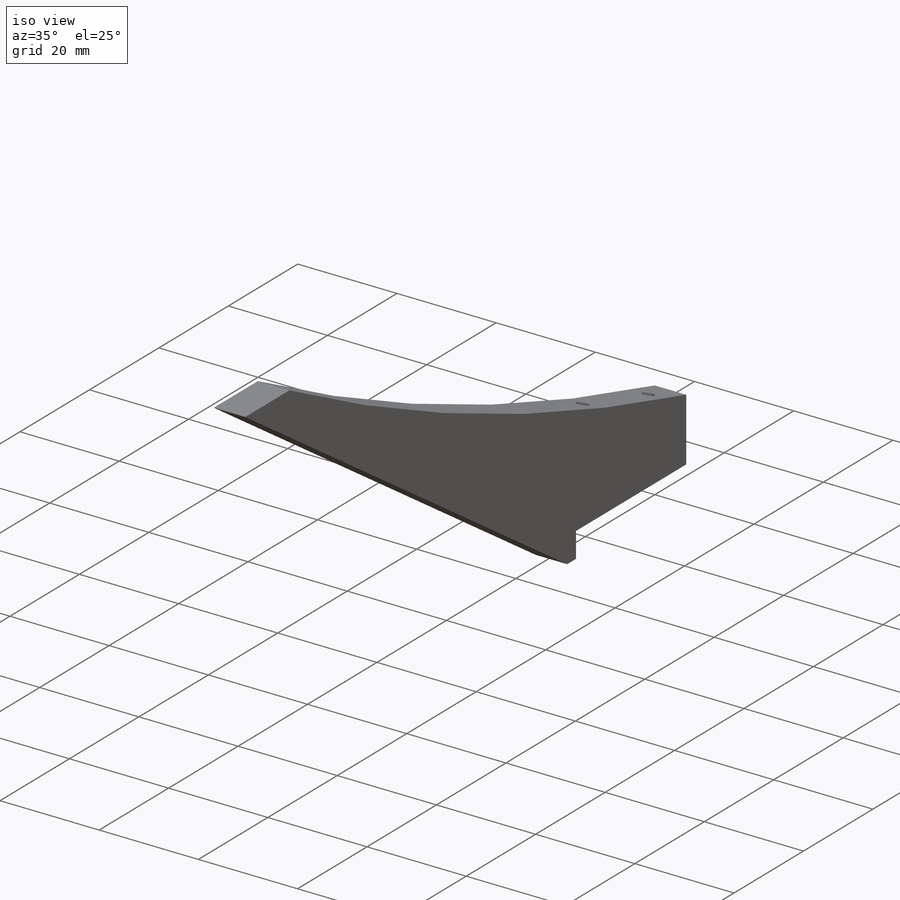
[diagram: iso view]
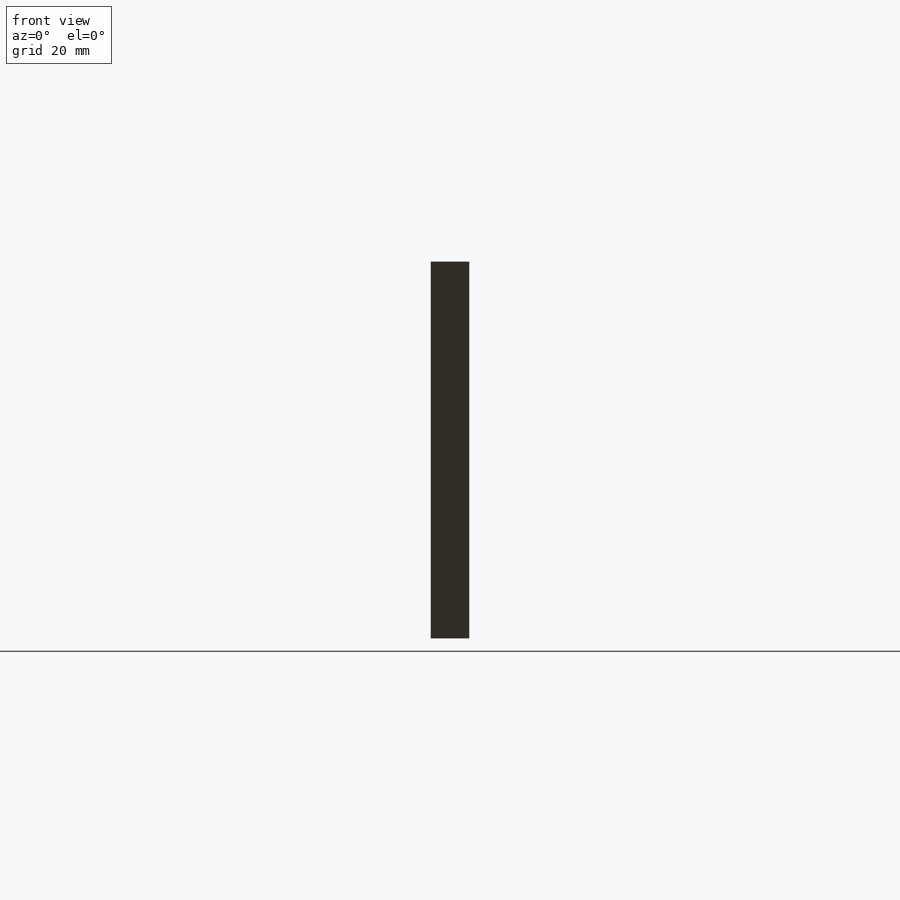
[diagram: front view]
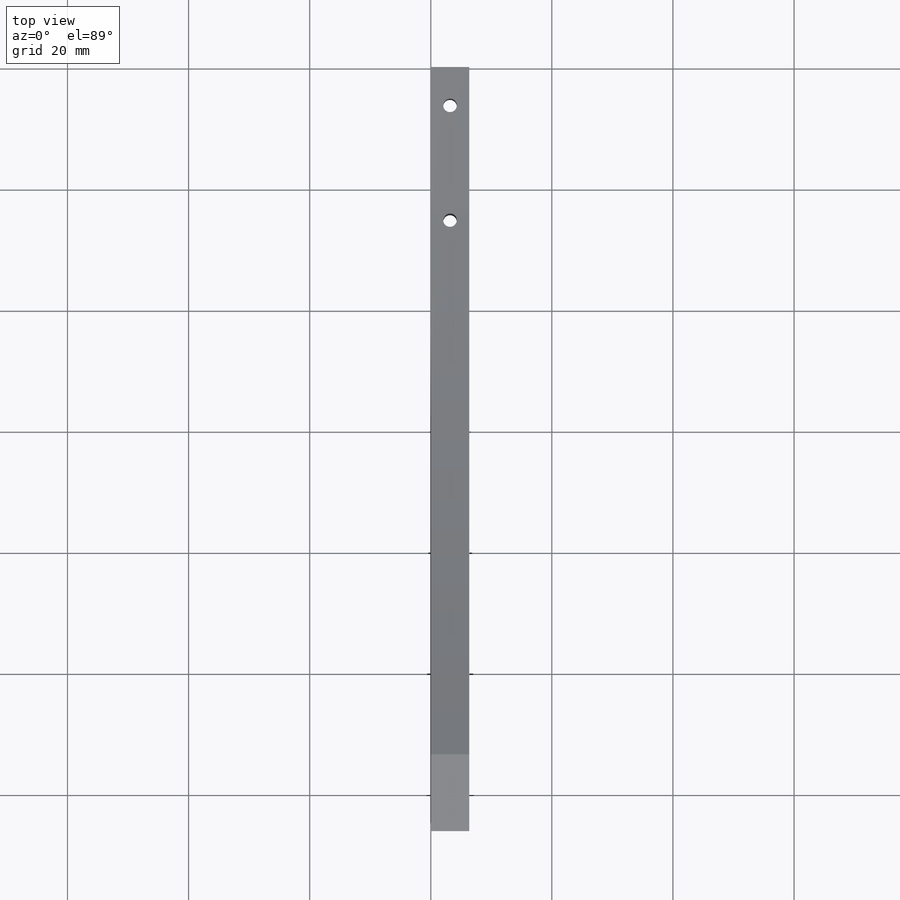
[diagram: top view]
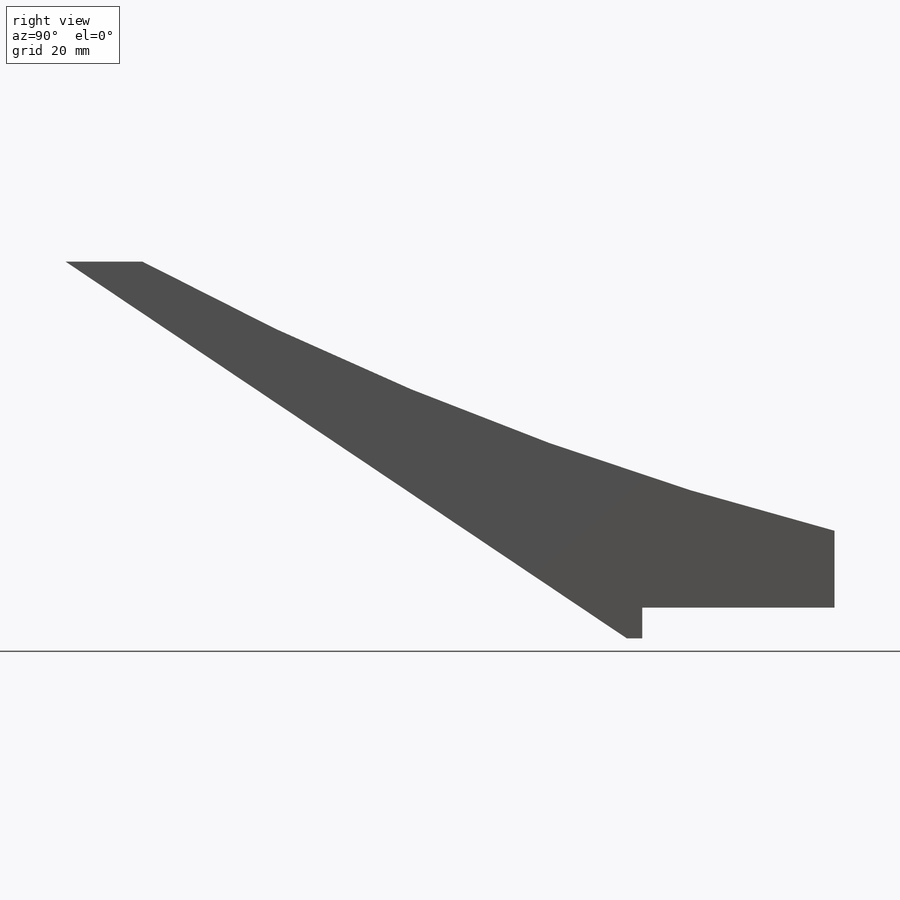
[diagram: right view]
SOLIDWORKS PART (.sldprt)
format: sldprt  version: not decoded by parser v0  size: 316,928 bytes
history: native  units: mm
features: sketch x3, thread x2, material x1, extrude x1, hole x1 (+12 scaffold rows collapsed)
feature tree (20):
  scaffold x12  (default folders/planes/origin — collapsed)
  material  "Delrin 2700 NC010, Low Viscosity Acetal Copolymer (SS)"
  sketch  "Sketch1"  dims[c1.D9=508.0mm c1.D1=127.0mm c1.D2=44.45mm c1.D3=12.7mm c1.D4=12.7mm c1.D5=31.75mm c1.D6=31.75mm c2.D5=5.08mm c2.D7=2.54mm c2.D8=31.75mm]
  extrude  "Boss-Extrude1"  Depth=6.35mm
  hole  "#4-40 Tapped Hole1"  Diameter=2.2606mm Depth=19.890549mm
  sketch  "Sketch5"  dims[c1.D1=5.08mm c1.D2=15.24mm c2.D1=19.05mm c2.D2=6.35mm]
  sketch  "Sketch6"  dims[hole-wizard template sketch: 60 standard entries collapsed; hole parameters kept: c18.Thru Tap Drill Depth=~19.890549mm]
  thread  "Hole Thread1"  Diameter=2.8448mm  [1 undecoded]
  thread  "Hole Thread2"  Diameter=2.8448mm  [1 undecoded]
decode coverage: 7 of 7 modeling features carry decoded parameters
note: ~ marks probable driven/reference dimensions
note: 2 parameter values undecoded
note: suppression state not decoded; provenance and decode notes live in map.json
